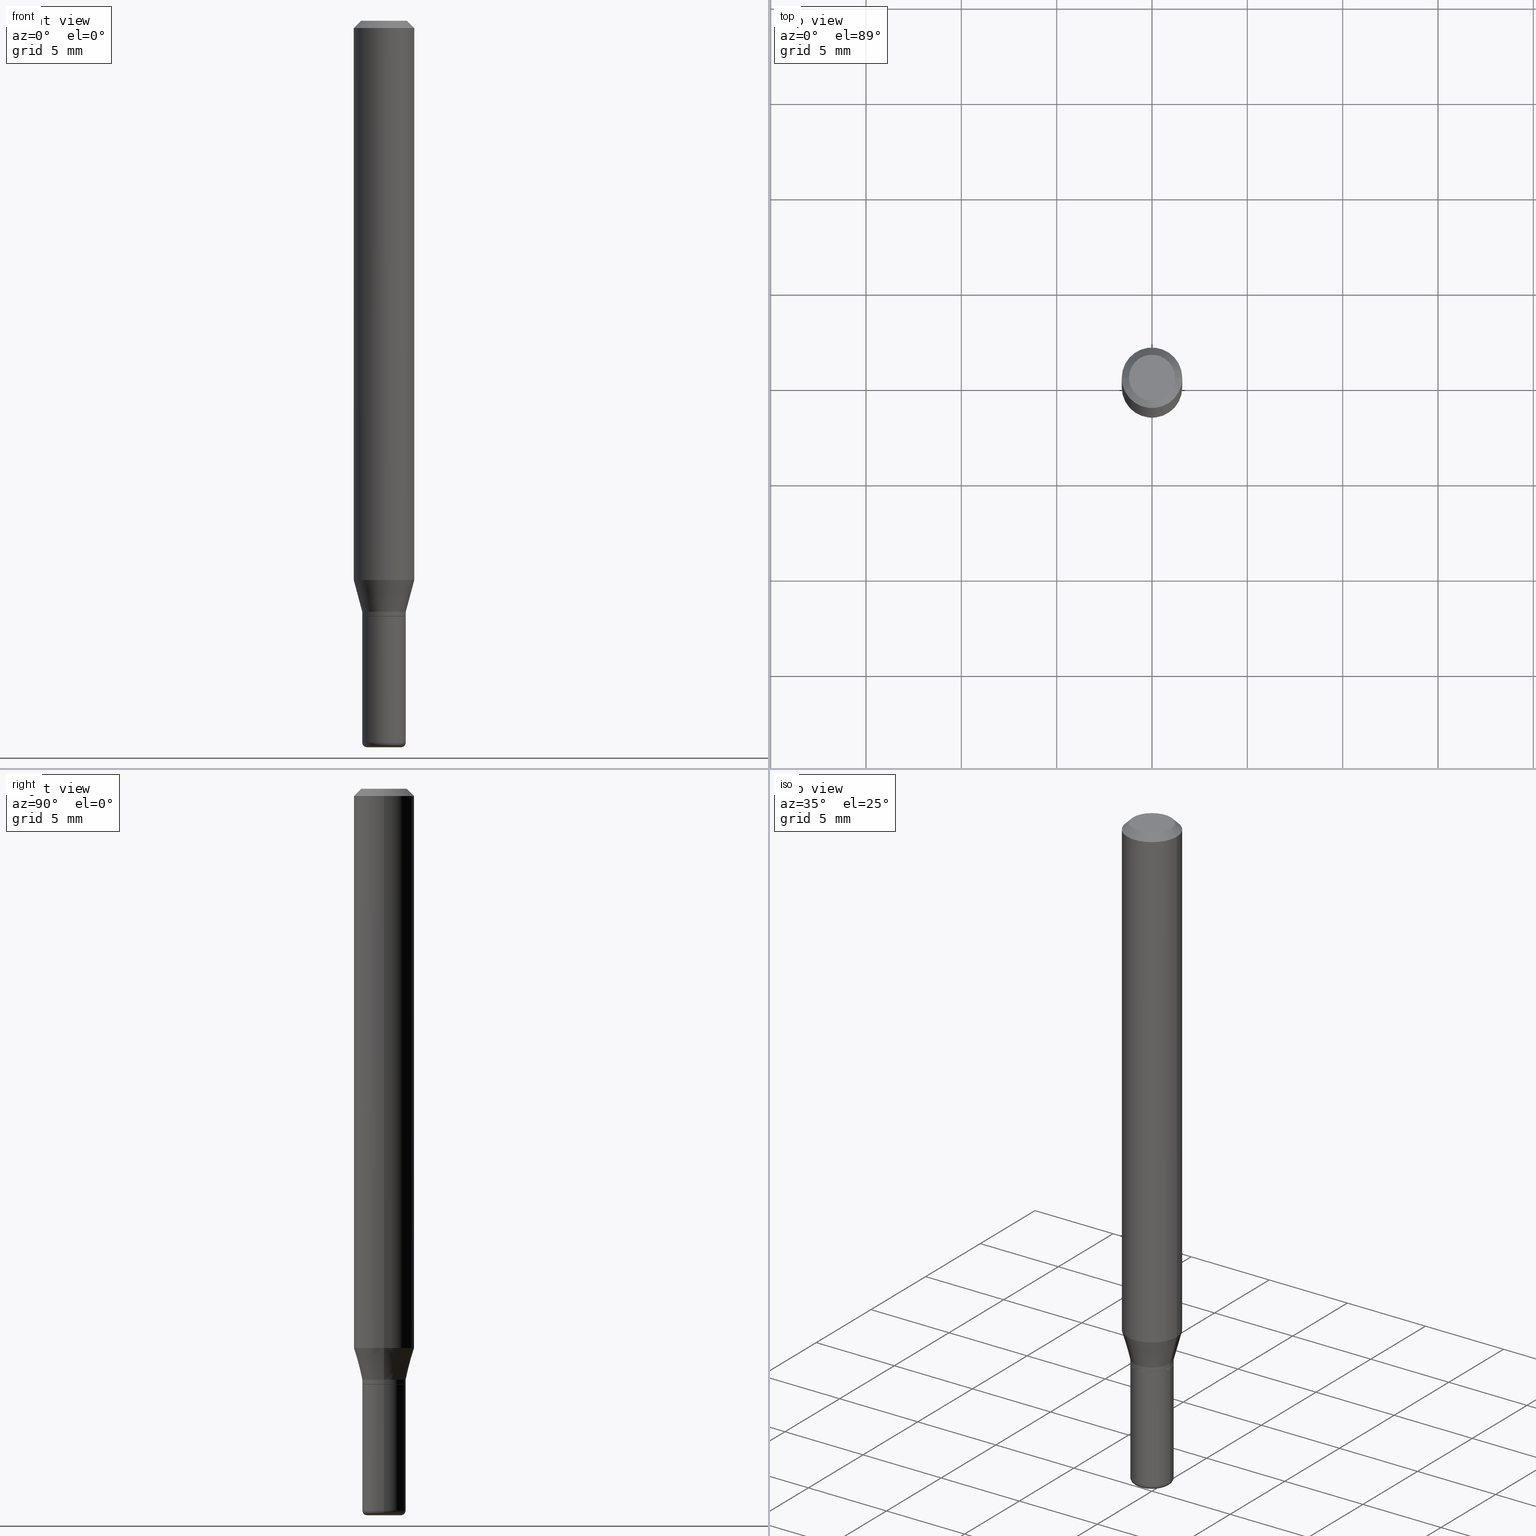
[diagram: canonical four-view strip — front | top / right | iso, engineering-drawing reading convention]
A machine part, canonical four-view strip (front | top / right | iso — engineering-drawing reading convention). The complete STEP part file that produces these views, byte-faithful:
ISO-10303-21;
HEADER;
FILE_DESCRIPTION (( 'STEP AP203' ),
    '1' );
FILE_NAME ('08578.STEP',
    '2024-02-29T19:51:22',
    ( '' ),
    ( '' ),
    'SwSTEP 2.0',
    'SolidWorks 2023',
    '' );
FILE_SCHEMA (( 'CONFIG_CONTROL_DESIGN' ));
ENDSEC;

DATA;
#1 = CIRCLE ( 'NONE', #450, 0.04499999999999997058 ) ;
#2 = CIRCLE ( 'NONE', #485, 0.04499999999999997058 ) ;
#3 = EDGE_CURVE ( 'NONE', #106, #59, #79, .T. ) ;
#4 = DIRECTION ( 'NONE',  ( 1.000000000000000000, -6.982962677686266711E-15, 4.852736867747365086E-29 ) ) ;
#5 = DIRECTION ( 'NONE',  ( 1.000000000000000000, -6.982962677686273021E-15, 0.000000000000000000 ) ) ;
#6 = DIRECTION ( 'NONE',  ( -2.445468806185136597E-29, 3.491481338843145583E-15, 1.000000000000000000 ) ) ;
#7 = ADVANCED_FACE ( 'NONE', ( #305 ), #483, .T. ) ;
#8 = CARTESIAN_POINT ( 'NONE',  ( -0.06250000000000000000, -3.587486272909353851E-15, -1.154689110867544555 ) ) ;
#9 = CARTESIAN_POINT ( 'NONE',  ( -0.04449999999999997014, -3.975681302189714292E-15, -1.230000000000000204 ) ) ;
#10 = DIRECTION ( 'NONE',  ( -2.438088387897960049E-29, 3.491481338843145188E-15, 1.000000000000000000 ) ) ;
#11 = DIRECTION ( 'NONE',  ( 1.000000000000000000, -6.982962677686265922E-15, 4.876176775795935793E-29 ) ) ;
#12 = APPROVAL ( #439, 'UNSPECIFIED' ) ;
#13 = DIRECTION ( 'NONE',  ( -2.445468806185136597E-29, 3.491481338843145583E-15, 1.000000000000000000 ) ) ;
#14 = ORIENTED_EDGE ( 'NONE', *, *, #82, .T. ) ;
#15 = AXIS2_PLACEMENT_3D ( 'NONE', #472, #72, #341 ) ;
#16 = CC_DESIGN_APPROVAL ( #174, ( #171 ) ) ;
#17 = CARTESIAN_POINT ( 'NONE',  ( 0.06250000000000000000, -4.468010650114807348E-15, -1.154689110867544555 ) ) ;
#18 = ORIENTED_EDGE ( 'NONE', *, *, #227, .F. ) ;
#19 = ADVANCED_FACE ( 'NONE', ( #88 ), #379, .T. ) ;
#20 = DIRECTION ( 'NONE',  ( -6.982962677686266711E-15, -1.000000000000000000, 3.491481338843145583E-15 ) ) ;
#21 = ORIENTED_EDGE ( 'NONE', *, *, #73, .F. ) ;
#22 = EDGE_LOOP ( 'NONE', ( #21, #482, #117, #375 ) ) ;
#23 = SHAPE_DEFINITION_REPRESENTATION ( #412, #203 ) ;
#24 = VERTEX_POINT ( 'NONE', #282 ) ;
#25 = ORIENTED_EDGE ( 'NONE', *, *, #370, .F. ) ;
#26 = AXIS2_PLACEMENT_3D ( 'NONE', #35, #233, #514 ) ;
#27 = AXIS2_PLACEMENT_3D ( 'NONE', #489, #133, #444 ) ;
#28 = DIRECTION ( 'NONE',  ( 1.000000000000000000, -6.982962677686261977E-15, 0.000000000000000000 ) ) ;
#29 = COORDINATED_UNIVERSAL_TIME_OFFSET ( 5, 0, .BEHIND. ) ;
#30 = VERTEX_POINT ( 'NONE', #50 ) ;
#31 = CC_DESIGN_DATE_AND_TIME_ASSIGNMENT ( #471, #348, ( #171 ) ) ;
#32 = DIRECTION ( 'NONE',  ( -1.000000000000000000, 7.105427357600962416E-15, 0.000000000000000000 ) ) ;
#33 = CARTESIAN_POINT ( 'NONE',  ( -0.03499999999999999639, -4.953617237360252819E-15, -1.490000000000000213 ) ) ;
#34 = VERTEX_POINT ( 'NONE', #9 ) ;
#35 = CARTESIAN_POINT ( 'NONE',  ( 3.668203209277632395E-31, -5.237222008264614861E-17, -0.01499999999999970281 ) ) ;
#36 = AXIS2_PLACEMENT_3D ( 'NONE', #457, #296, #176 ) ;
#37 = COORDINATED_UNIVERSAL_TIME_OFFSET ( 5, 0, .BEHIND. ) ;
#38 = LOCAL_TIME ( 14, 51, 22.00000000000000000, #64 ) ;
#39 = LINE ( 'NONE', #109, #178 ) ;
#40 = EDGE_CURVE ( 'NONE', #191, #290, #212, .T. ) ;
#41 = DIRECTION ( 'NONE',  ( 1.000000000000000000, -6.982962677686275388E-15, 0.000000000000000000 ) ) ;
#42 = EDGE_CURVE ( 'NONE', #499, #113, #245, .T. ) ;
#43 = ORIENTED_EDGE ( 'NONE', *, *, #383, .T. ) ;
#44 = CARTESIAN_POINT ( 'NONE',  ( 0.000000000000000000, 0.000000000000000000, 0.000000000000000000 ) ) ;
#45 = VECTOR ( 'NONE', #278, 39.37007874015748143 ) ;
#46 = DIRECTION ( 'NONE',  ( 1.000000000000000000, -6.982962677686267499E-15, 4.876176775795935793E-29 ) ) ;
#47 = DIRECTION ( 'NONE',  ( 1.000000000000000000, -6.982962677686265922E-15, 4.876176775795935793E-29 ) ) ;
#48 = EDGE_CURVE ( 'NONE', #230, #108, #313, .T. ) ;
#49 = LINE ( 'NONE', #255, #397 ) ;
#50 = CARTESIAN_POINT ( 'NONE',  ( -0.04750000000000000749, 3.578768372314221353E-16, 2.731847993664239060E-16 ) ) ;
#51 = LINE ( 'NONE', #353, #302 ) ;
#52 = ADVANCED_FACE ( 'NONE', ( #391 ), #347, .T. ) ;
#53 = DIRECTION ( 'NONE',  ( 1.000000000000000000, -6.982962677686266711E-15, 4.852736867747365086E-29 ) ) ;
#54 = AXIS2_PLACEMENT_3D ( 'NONE', #107, #263, #428 ) ;
#55 = DIMENSIONAL_EXPONENTS ( 1.000000000000000000, 0.000000000000000000, 0.000000000000000000, 0.000000000000000000, 0.000000000000000000, 0.000000000000000000, 0.000000000000000000 ) ;
#56 = CARTESIAN_POINT ( 'NONE',  ( 0.000000000000000000, 0.000000000000000000, 0.000000000000000000 ) ) ;
#57 = AXIS2_PLACEMENT_3D ( 'NONE', #172, #207, #324 ) ;
#58 = UNCERTAINTY_MEASURE_WITH_UNIT (LENGTH_MEASURE( 1.000000000000000082E-05 ), #253, 'distance_accuracy_value', 'NONE');
#59 = VERTEX_POINT ( 'NONE', #446 ) ;
#60 = FACE_OUTER_BOUND ( 'NONE', #419, .T. ) ;
#61 = CARTESIAN_POINT ( 'NONE',  ( 2.823756201468231071E-29, -4.031575482759415678E-15, -1.154689110867544555 ) ) ;
#62 = VECTOR ( 'NONE', #102, 39.37007874015748143 ) ;
#63 = AXIS2_PLACEMENT_3D ( 'NONE', #244, #487, #279 ) ;
#64 = COORDINATED_UNIVERSAL_TIME_OFFSET ( 5, 0, .BEHIND. ) ;
#65 = ORIENTED_EDGE ( 'NONE', *, *, #170, .F. ) ;
#66 = CARTESIAN_POINT ( 'NONE',  ( -0.04449999999999997014, -3.978330529363825493E-15, -1.230000000000000204 ) ) ;
#67 = EDGE_LOOP ( 'NONE', ( #185, #92, #435, #369 ) ) ;
#68 = CYLINDRICAL_SURFACE ( 'NONE', #187, 0.04499999999999997058 ) ;
#69 = CARTESIAN_POINT ( 'NONE',  ( -0.04499999999999997058, 3.197442310920448746E-16, -2.213520790614706158E-30 ) ) ;
#70 = DATE_AND_TIME ( #267, #38 ) ;
#71 = ORIENTED_EDGE ( 'NONE', *, *, #388, .T. ) ;
#72 = DIRECTION ( 'NONE',  ( -2.445468806185136597E-29, 3.491481338843145583E-15, 1.000000000000000000 ) ) ;
#73 = EDGE_CURVE ( 'NONE', #333, #113, #399, .T. ) ;
#74 = CARTESIAN_POINT ( 'NONE',  ( 0.000000000000000000, 0.000000000000000000, 0.000000000000000000 ) ) ;
#75 = AXIS2_PLACEMENT_3D ( 'NONE', #361, #208, #47 ) ;
#76 = DATE_TIME_ROLE ( 'creation_date' ) ;
#77 = CC_DESIGN_APPROVAL ( #12, ( #426 ) ) ;
#78 = DIRECTION ( 'NONE',  ( -2.445468806185136597E-29, 3.491481338843145583E-15, 1.000000000000000000 ) ) ;
#79 = LINE ( 'NONE', #69, #406 ) ;
#80 = ORIENTED_EDGE ( 'NONE', *, *, #518, .F. ) ;
#81 = DIRECTION ( 'NONE',  ( -1.000000000000000000, 6.982962677686266711E-15, 0.000000000000000000 ) ) ;
#82 = EDGE_CURVE ( 'NONE', #191, #427, #1, .T. ) ;
#83 = FACE_OUTER_BOUND ( 'NONE', #105, .T. ) ;
#84 = PRODUCT_RELATED_PRODUCT_CATEGORY ( 'detail', '', ( #497 ) ) ;
#85 = CONICAL_SURFACE ( 'NONE', #321, 0.04449999999999997014, 0.7853981633975507526 ) ;
#86 = DIRECTION ( 'NONE',  ( 1.000000000000000000, -6.982962677686269077E-15, 0.000000000000000000 ) ) ;
#87 = CARTESIAN_POINT ( 'NONE',  ( 3.006703897204625975E-29, -4.292776306107648458E-15, -1.229500000000000259 ) ) ;
#88 = FACE_OUTER_BOUND ( 'NONE', #201, .T. ) ;
#89 = ORIENTED_EDGE ( 'NONE', *, *, #344, .F. ) ;
#90 = PLANE ( 'NONE',  #63 ) ;
#91 = APPLICATION_CONTEXT ( 'configuration controlled 3d designs of mechanical parts and assemblies' ) ;
#92 = ORIENTED_EDGE ( 'NONE', *, *, #73, .T. ) ;
#93 = ORIENTED_EDGE ( 'NONE', *, *, #323, .T. ) ;
#94 = AXIS2_PLACEMENT_3D ( 'NONE', #272, #199, #438 ) ;
#95 = CIRCLE ( 'NONE', #213, 0.04499999999999994976 ) ;
#96 = EDGE_LOOP ( 'NONE', ( #276, #262, #148, #516 ) ) ;
#97 = EDGE_CURVE ( 'NONE', #468, #377, #322, .T. ) ;
#98 = ADVANCED_FACE ( 'NONE', ( #198 ), #135, .T. ) ;
#99 = COORDINATED_UNIVERSAL_TIME_OFFSET ( 5, 0, .BEHIND. ) ;
#100 = ORIENTED_EDGE ( 'NONE', *, *, #194, .T. ) ;
#101 = VECTOR ( 'NONE', #226, 39.37007874015748143 ) ;
#102 = DIRECTION ( 'NONE',  ( -2.445468806185136877E-29, 3.491481338843145188E-15, 1.000000000000000000 ) ) ;
#103 = ORIENTED_EDGE ( 'NONE', *, *, #210, .F. ) ;
#104 = CARTESIAN_POINT ( 'NONE',  ( 3.668203209277632395E-31, -5.237222008264614861E-17, -0.01499999999999970281 ) ) ;
#105 = EDGE_LOOP ( 'NONE', ( #335, #43 ) ) ;
#106 = VERTEX_POINT ( 'NONE', #204 ) ;
#107 = CARTESIAN_POINT ( 'NONE',  ( 3.643748521215853910E-29, -5.202307194876288105E-15, -1.490000000000000213 ) ) ;
#108 = VERTEX_POINT ( 'NONE', #392 ) ;
#109 = CARTESIAN_POINT ( 'NONE',  ( 0.04499999999999995670, -4.573840553884519999E-15, -1.220000000000000195 ) ) ;
#110 = AXIS2_PLACEMENT_3D ( 'NONE', #149, #352, #517 ) ;
#111 = AXIS2_PLACEMENT_3D ( 'NONE', #44, #167, #365 ) ;
#112 = EDGE_CURVE ( 'NONE', #230, #106, #354, .T. ) ;
#113 = VERTEX_POINT ( 'NONE', #504 ) ;
#114 = ORIENTED_EDGE ( 'NONE', *, *, #383, .F. ) ;
#115 = CARTESIAN_POINT ( 'NONE',  ( 2.983471943545866670E-29, -4.259607233388637524E-15, -1.220000000000000195 ) ) ;
#116 = FACE_OUTER_BOUND ( 'NONE', #510, .T. ) ;
#117 = ORIENTED_EDGE ( 'NONE', *, *, #448, .T. ) ;
#118 = CARTESIAN_POINT ( 'NONE',  ( 0.04499999999999996364, -3.142333204958817850E-16, 2.194279549108169215E-30 ) ) ;
#119 = APPROVAL_DATE_TIME ( #229, #12 ) ;
#120 = FACE_OUTER_BOUND ( 'NONE', #268, .T. ) ;
#121 = CIRCLE ( 'NONE', #275, 0.04750000000000000749 ) ;
#122 = ORIENTED_EDGE ( 'NONE', *, *, #496, .T. ) ;
#123 = FACE_OUTER_BOUND ( 'NONE', #22, .T. ) ;
#124 = EDGE_CURVE ( 'NONE', #24, #34, #473, .T. ) ;
#125 = DIRECTION ( 'NONE',  ( -2.445468806185136597E-29, 3.491481338843145583E-15, 1.000000000000000000 ) ) ;
#126 = CARTESIAN_POINT ( 'NONE',  ( -0.04499999999999996364, 3.197442310920448253E-16, -2.213520790614705808E-30 ) ) ;
#127 = FACE_OUTER_BOUND ( 'NONE', #256, .T. ) ;
#128 = DIRECTION ( 'NONE',  ( 1.000000000000000000, -6.982962677686275388E-15, 0.000000000000000000 ) ) ;
#129 = EDGE_CURVE ( 'NONE', #469, #384, #396, .T. ) ;
#130 = AXIS2_PLACEMENT_3D ( 'NONE', #240, #211, #4 ) ;
#131 = DIRECTION ( 'NONE',  ( -2.445468806185136877E-29, 3.491481338843145188E-15, 1.000000000000000000 ) ) ;
#132 = CARTESIAN_POINT ( 'NONE',  ( 3.643748521215853910E-29, -5.202307194876288105E-15, -1.490000000000000213 ) ) ;
#133 = DIRECTION ( 'NONE',  ( 2.445468806185136597E-29, -3.491481338843145583E-15, -1.000000000000000000 ) ) ;
#134 = DIRECTION ( 'NONE',  ( 1.000000000000000000, -6.982962677686266711E-15, 4.876176775795935793E-29 ) ) ;
#135 = CONICAL_SURFACE ( 'NONE', #238, 0.04499999999999995670, 0.2617993877991494633 ) ;
#136 = DIRECTION ( 'NONE',  ( 1.000000000000000000, -6.982962677686276177E-15, 4.883557194083116264E-29 ) ) ;
#137 = AXIS2_PLACEMENT_3D ( 'NONE', #115, #189, #431 ) ;
#138 = ORGANIZATION ( 'UNSPECIFIED', 'UNSPECIFIED', '' ) ;
#139 = LENGTH_MEASURE_WITH_UNIT ( LENGTH_MEASURE( 0.02539999999999999897 ), #177 );
#140 = PERSON_AND_ORGANIZATION ( #193, #138 ) ;
#141 = ORIENTED_EDGE ( 'NONE', *, *, #40, .T. ) ;
#142 = DIRECTION ( 'NONE',  ( -0.7071067811865479058, 2.468850131082261005E-15, -0.7071067811865471286 ) ) ;
#143 = ORIENTED_EDGE ( 'NONE', *, *, #3, .F. ) ;
#144 = AXIS2_PLACEMENT_3D ( 'NONE', #243, #403, #128 ) ;
#145 = AXIS2_PLACEMENT_3D ( 'NONE', #61, #78, #301 ) ;
#146 = APPROVAL_DATE_TIME ( #257, #174 ) ;
#147 = ORIENTED_EDGE ( 'NONE', *, *, #417, .F. ) ;
#148 = ORIENTED_EDGE ( 'NONE', *, *, #219, .F. ) ;
#149 = CARTESIAN_POINT ( 'NONE',  ( 3.007926631607718216E-29, -4.294522046777069173E-15, -1.230000000000000204 ) ) ;
#150 = CC_DESIGN_PERSON_AND_ORGANIZATION_ASSIGNMENT ( #151, #509, ( #426 ) ) ;
#151 = PERSON_AND_ORGANIZATION ( #193, #138 ) ;
#152 = DIRECTION ( 'NONE',  ( 1.000000000000000000, -6.982962677686267499E-15, 4.876176775795935793E-29 ) ) ;
#153 = VECTOR ( 'NONE', #131, 39.37007874015748143 ) ;
#154 = PERSON_AND_ORGANIZATION ( #193, #138 ) ;
#155 = EDGE_CURVE ( 'NONE', #106, #468, #95, .T. ) ;
#156 = DIRECTION ( 'NONE',  ( 1.000000000000000000, -6.982962677686267499E-15, 4.876176775795935793E-29 ) ) ;
#157 = DIRECTION ( 'NONE',  ( -2.445468806185136877E-29, 3.491481338843145188E-15, 1.000000000000000000 ) ) ;
#158 = SECURITY_CLASSIFICATION_LEVEL ( 'unclassified' ) ;
#159 = DIRECTION ( 'NONE',  ( 1.000000000000000000, -6.982962677686276966E-15, 0.000000000000000000 ) ) ;
#160 = ORIENTED_EDGE ( 'NONE', *, *, #124, .F. ) ;
#161 = ORIENTED_EDGE ( 'NONE', *, *, #326, .T. ) ;
#162 = DIRECTION ( 'NONE',  ( -2.445468806185136597E-29, 3.491481338843145583E-15, 1.000000000000000000 ) ) ;
#163 = CONICAL_SURFACE ( 'NONE', #458, 0.04449999999999997014, 0.7853981633975507526 ) ;
#164 = CARTESIAN_POINT ( 'NONE',  ( -0.06250000000000000000, 4.440892098500626162E-16, -3.074334431409316114E-30 ) ) ;
#165 = DIRECTION ( 'NONE',  ( 2.438088387897960049E-29, -3.491481338843145188E-15, -1.000000000000000000 ) ) ;
#166 = EDGE_CURVE ( 'NONE', #34, #24, #339, .T. ) ;
#167 = DIRECTION ( 'NONE',  ( -2.445468806185136597E-29, 3.491481338843145583E-15, 1.000000000000000000 ) ) ;
#168 = VERTEX_POINT ( 'NONE', #202 ) ;
#169 = CIRCLE ( 'NONE', #217, 0.009999999999999948166 ) ;
#170 = EDGE_CURVE ( 'NONE', #384, #469, #314, .T. ) ;
#171 = SECURITY_CLASSIFICATION ( '', '', #158 ) ;
#172 = CARTESIAN_POINT ( 'NONE',  ( 3.007926631607718216E-29, -4.294522046777069173E-15, -1.230000000000000204 ) ) ;
#173 = APPLICATION_CONTEXT ( 'configuration controlled 3d designs of mechanical parts and assemblies' ) ;
#174 = APPROVAL ( #273, 'UNSPECIFIED' ) ;
#175 = ORIENTED_EDGE ( 'NONE', *, *, #344, .T. ) ;
#176 = DIRECTION ( 'NONE',  ( 1.000000000000000000, -6.982962677686266711E-15, 4.876176775795935793E-29 ) ) ;
#177 =( LENGTH_UNIT ( ) NAMED_UNIT ( * ) SI_UNIT ( $, .METRE. ) );
#178 = VECTOR ( 'NONE', #228, 39.37007874015748854 ) ;
#179 = CC_DESIGN_APPROVAL ( #215, ( #328 ) ) ;
#180 = FACE_OUTER_BOUND ( 'NONE', #484, .T. ) ;
#181 = EDGE_LOOP ( 'NONE', ( #18, #503 ) ) ;
#182 = CYLINDRICAL_SURFACE ( 'NONE', #36, 0.06250000000000000000 ) ;
#183 = ORIENTED_EDGE ( 'NONE', *, *, #294, .F. ) ;
#184 = ORIENTED_EDGE ( 'NONE', *, *, #326, .F. ) ;
#185 = ORIENTED_EDGE ( 'NONE', *, *, #323, .F. ) ;
#186 = CLOSED_SHELL ( 'NONE', ( #7, #260, #398, #310, #505, #360 ) ) ;
#187 = AXIS2_PLACEMENT_3D ( 'NONE', #346, #512, #156 ) ;
#188 = CC_DESIGN_PERSON_AND_ORGANIZATION_ASSIGNMENT ( #222, #420, ( #171 ) ) ;
#189 = DIRECTION ( 'NONE',  ( -2.445468806185136597E-29, 3.491481338843145583E-15, 1.000000000000000000 ) ) ;
#190 = PERSON_AND_ORGANIZATION_ROLE ( 'creator' ) ;
#191 = VERTEX_POINT ( 'NONE', #351 ) ;
#192 = CARTESIAN_POINT ( 'NONE',  ( 0.000000000000000000, 0.000000000000000000, 0.000000000000000000 ) ) ;
#193 = PERSON ( 'UNSPECIFIED', 'UNSPECIFIED', 'UNSPECIFIED', ('UNSPECIFIED'), ('UNSPECIFIED'), ('UNSPECIFIED') ) ;
#194 = EDGE_CURVE ( 'NONE', #290, #168, #372, .T. ) ;
#195 = CARTESIAN_POINT ( 'NONE',  ( 3.643748521215853910E-29, -5.202307194876288105E-15, -1.490000000000000213 ) ) ;
#196 = ORIENTED_EDGE ( 'NONE', *, *, #241, .F. ) ;
#197 = LOCAL_TIME ( 14, 51, 22.00000000000000000, #37 ) ;
#198 = FACE_OUTER_BOUND ( 'NONE', #387, .T. ) ;
#199 = DIRECTION ( 'NONE',  ( -2.445468806185136597E-29, 3.491481338843145583E-15, 1.000000000000000000 ) ) ;
#200 = PERSON_AND_ORGANIZATION ( #193, #138 ) ;
#201 = EDGE_LOOP ( 'NONE', ( #100, #175, #338, #103 ) ) ;
#202 = CARTESIAN_POINT ( 'NONE',  ( -0.04499999999999995670, -3.763674637602973398E-15, -1.220000000000000195 ) ) ;
#203 = ADVANCED_BREP_SHAPE_REPRESENTATION ( '08578', ( #434, #445, #277 ), #373 ) ;
#204 = CARTESIAN_POINT ( 'NONE',  ( -0.04499999999999994976, -4.428670389734633666E-15, -1.490000000000000213 ) ) ;
#205 = PLANE ( 'NONE',  #330 ) ;
#206 = CIRCLE ( 'NONE', #407, 0.03500000000000000333 ) ;
#207 = DIRECTION ( 'NONE',  ( -2.445468806185136597E-29, 3.491481338843145583E-15, 1.000000000000000000 ) ) ;
#208 = DIRECTION ( 'NONE',  ( -2.438088387897960049E-29, 3.491481338843145188E-15, 1.000000000000000000 ) ) ;
#209 = ORIENTED_EDGE ( 'NONE', *, *, #219, .T. ) ;
#210 = EDGE_CURVE ( 'NONE', #290, #469, #39, .T. ) ;
#211 = DIRECTION ( 'NONE',  ( -2.445468806185136597E-29, 3.491481338843145583E-15, 1.000000000000000000 ) ) ;
#212 = LINE ( 'NONE', #118, #252 ) ;
#213 = AXIS2_PLACEMENT_3D ( 'NONE', #195, #162, #479 ) ;
#214 = FACE_OUTER_BOUND ( 'NONE', #181, .T. ) ;
#215 = APPROVAL ( #411, 'UNSPECIFIED' ) ;
#216 = MECHANICAL_CONTEXT ( 'NONE', #91, 'mechanical' ) ;
#217 = AXIS2_PLACEMENT_3D ( 'NONE', #409, #20, #286 ) ;
#218 = EDGE_LOOP ( 'NONE', ( #160, #462 ) ) ;
#219 = EDGE_CURVE ( 'NONE', #468, #106, #297, .T. ) ;
#220 = CARTESIAN_POINT ( 'NONE',  ( -0.06250000000000000000, -1.597884641570968368E-15, -0.01499999999999970281 ) ) ;
#221 = ORIENTED_EDGE ( 'NONE', *, *, #48, .T. ) ;
#222 = PERSON_AND_ORGANIZATION ( #193, #138 ) ;
#223 = CONICAL_SURFACE ( 'NONE', #27, 0.06250000000000000000, 0.7853981633974488341 ) ;
#224 = LINE ( 'NONE', #66, #101 ) ;
#225 = COORDINATED_UNIVERSAL_TIME_OFFSET ( 5, 0, .BEHIND. ) ;
#226 = DIRECTION ( 'NONE',  ( -0.7071067811866199593, 7.493145998870616062E-15, 0.7071067811864750752 ) ) ;
#227 = EDGE_CURVE ( 'NONE', #108, #230, #206, .T. ) ;
#228 = DIRECTION ( 'NONE',  ( 0.2588190451025207395, 1.565188264969626109E-15, 0.9659258262890682012 ) ) ;
#229 = DATE_AND_TIME ( #506, #408 ) ;
#230 = VERTEX_POINT ( 'NONE', #390 ) ;
#231 = CARTESIAN_POINT ( 'NONE',  ( 2.983471943545866670E-29, -4.259607233388637524E-15, -1.220000000000000195 ) ) ;
#232 = VECTOR ( 'NONE', #303, 39.37007874015748143 ) ;
#233 = DIRECTION ( 'NONE',  ( -2.445468806185136597E-29, 3.491481338843145583E-15, 1.000000000000000000 ) ) ;
#234 = APPROVAL_ROLE ( '' ) ;
#235 = DIRECTION ( 'NONE',  ( 7.105427357601001859E-15, 1.000000000000000000, -3.491481338843145583E-15 ) ) ;
#236 = CARTESIAN_POINT ( 'NONE',  ( 3.582686580359766038E-29, -5.359686688179453325E-15, -1.500000000000000222 ) ) ;
#237 = DIRECTION ( 'NONE',  ( -0.2588190451025207395, 5.211531920934546309E-15, 0.9659258262890682012 ) ) ;
#238 = AXIS2_PLACEMENT_3D ( 'NONE', #231, #304, #41 ) ;
#239 = DIRECTION ( 'NONE',  ( -2.445468806185136597E-29, 3.491481338843145583E-15, 1.000000000000000000 ) ) ;
#240 = CARTESIAN_POINT ( 'NONE',  ( -6.680649051745406845E-45, 9.538196290434862081E-31, 2.731847993664263218E-16 ) ) ;
#241 = EDGE_CURVE ( 'NONE', #34, #427, #224, .T. ) ;
#242 = DIRECTION ( 'NONE',  ( -2.445468806185136877E-29, 3.491481338843145188E-15, 1.000000000000000000 ) ) ;
#243 = CARTESIAN_POINT ( 'NONE',  ( 2.983471943545866670E-29, -4.259607233388637524E-15, -1.220000000000000195 ) ) ;
#244 = CARTESIAN_POINT ( 'NONE',  ( 3.142333204959120083E-16, 0.04499999999999570316, -1.230000000000000204 ) ) ;
#245 = CIRCLE ( 'NONE', #26, 0.06250000000000000000 ) ;
#246 = AXIS2_PLACEMENT_3D ( 'NONE', #236, #10, #11 ) ;
#247 = CIRCLE ( 'NONE', #130, 0.04750000000000000749 ) ;
#248 = CARTESIAN_POINT ( 'NONE',  ( 3.007926631607718216E-29, -4.294522046777069173E-15, -1.230000000000000204 ) ) ;
#249 = CC_DESIGN_PERSON_AND_ORGANIZATION_ASSIGNMENT ( #389, #299, ( #426 ) ) ;
#250 = DIRECTION ( 'NONE',  ( 0.000000000000000000, 0.000000000000000000, 1.000000000000000000 ) ) ;
#251 = APPLICATION_PROTOCOL_DEFINITION ( 'international standard', 'config_control_design', 1994, #173 ) ;
#252 = VECTOR ( 'NONE', #306, 39.37007874015748143 ) ;
#253 =( CONVERSION_BASED_UNIT ( 'INCH', #139 ) LENGTH_UNIT ( ) NAMED_UNIT ( #55 ) );
#254 = AXIS2_PLACEMENT_3D ( 'NONE', #104, #415, #331 ) ;
#255 = CARTESIAN_POINT ( 'NONE',  ( -0.06250000000000000000, 3.840629472727455270E-16, -0.01499999999999970281 ) ) ;
#256 = EDGE_LOOP ( 'NONE', ( #14, #502, #410, #443 ) ) ;
#257 = DATE_AND_TIME ( #337, #289 ) ;
#258 = ORIENTED_EDGE ( 'NONE', *, *, #42, .F. ) ;
#259 = LINE ( 'NONE', #265, #232 ) ;
#260 = ADVANCED_FACE ( 'NONE', ( #422 ), #309, .T. ) ;
#261 = CLOSED_SHELL ( 'NONE', ( #423, #280, #404, #459, #19, #98, #511, #355, #432, #317, #455, #52 ) ) ;
#262 = ORIENTED_EDGE ( 'NONE', *, *, #112, .T. ) ;
#263 = DIRECTION ( 'NONE',  ( -2.445468806185136597E-29, 3.491481338843145583E-15, 1.000000000000000000 ) ) ;
#264 = CC_DESIGN_PERSON_AND_ORGANIZATION_ASSIGNMENT ( #200, #190, ( #328 ) ) ;
#265 = CARTESIAN_POINT ( 'NONE',  ( 0.04449999999999997014, -4.605263885934107852E-15, -1.230000000000000204 ) ) ;
#266 = EDGE_CURVE ( 'NONE', #24, #191, #259, .T. ) ;
#267 = CALENDAR_DATE ( 2024, 29, 2 ) ;
#268 = EDGE_LOOP ( 'NONE', ( #332, #430, #378, #463 ) ) ;
#269 = ORIENTED_EDGE ( 'NONE', *, *, #129, .T. ) ;
#270 = CARTESIAN_POINT ( 'NONE',  ( 3.668203209277704895E-29, -5.237222008264718177E-15, -1.500000000000000222 ) ) ;
#271 = ORIENTED_EDGE ( 'NONE', *, *, #97, .T. ) ;
#272 = CARTESIAN_POINT ( 'NONE',  ( 3.668203209277704895E-29, -5.237222008264718177E-15, -1.500000000000000222 ) ) ;
#273 = APPROVAL_STATUS ( 'not_yet_approved' ) ;
#274 = CARTESIAN_POINT ( 'NONE',  ( 3.007926631607718216E-29, -4.294522046777069173E-15, -1.230000000000000204 ) ) ;
#275 = AXIS2_PLACEMENT_3D ( 'NONE', #491, #6, #53 ) ;
#276 = ORIENTED_EDGE ( 'NONE', *, *, #227, .T. ) ;
#277 = AXIS2_PLACEMENT_3D ( 'NONE', #56, #250, #498 ) ;
#278 = DIRECTION ( 'NONE',  ( -2.445468806185136877E-29, 3.491481338843145188E-15, 1.000000000000000000 ) ) ;
#279 = DIRECTION ( 'NONE',  ( -1.000000000000000000, 6.982962677686265922E-15, -4.876176775795935793E-29 ) ) ;
#280 = ADVANCED_FACE ( 'NONE', ( #120 ), #163, .T. ) ;
#281 = CARTESIAN_POINT ( 'NONE',  ( 0.04750000000000000749, -4.035134999187568762E-16, 2.731847993664288856E-16 ) ) ;
#282 = CARTESIAN_POINT ( 'NONE',  ( 0.04449999999999997014, -4.605263885934107852E-15, -1.230000000000000204 ) ) ;
#283 = CIRCLE ( 'NONE', #57, 0.04499999999999999833 ) ;
#284 = LINE ( 'NONE', #126, #45 ) ;
#285 = CARTESIAN_POINT ( 'NONE',  ( 0.04499999999999999833, -4.608755367272951648E-15, -1.230000000000000204 ) ) ;
#286 = DIRECTION ( 'NONE',  ( 1.000000000000000000, -6.982962677686272233E-15, 0.000000000000000000 ) ) ;
#287 = AXIS2_PLACEMENT_3D ( 'NONE', #74, #239, #46 ) ;
#288 = VECTOR ( 'NONE', #242, 39.37007874015748143 ) ;
#289 = LOCAL_TIME ( 14, 51, 22.00000000000000000, #29 ) ;
#290 = VERTEX_POINT ( 'NONE', #382 ) ;
#291 =( NAMED_UNIT ( * ) PLANE_ANGLE_UNIT ( ) SI_UNIT ( $, .RADIAN. ) );
#292 = PERSON_AND_ORGANIZATION ( #193, #138 ) ;
#293 = ORIENTED_EDGE ( 'NONE', *, *, #155, .F. ) ;
#294 = EDGE_CURVE ( 'NONE', #168, #290, #362, .T. ) ;
#295 = CC_DESIGN_DATE_AND_TIME_ASSIGNMENT ( #70, #76, ( #328 ) ) ;
#296 = DIRECTION ( 'NONE',  ( -2.445468806185136597E-29, 3.491481338843145583E-15, 1.000000000000000000 ) ) ;
#297 = CIRCLE ( 'NONE', #54, 0.04499999999999994976 ) ;
#298 = ORIENTED_EDGE ( 'NONE', *, *, #370, .T. ) ;
#299 = PERSON_AND_ORGANIZATION_ROLE ( 'design_supplier' ) ;
#300 = ORIENTED_EDGE ( 'NONE', *, *, #170, .T. ) ;
#301 = DIRECTION ( 'NONE',  ( 1.000000000000000000, -6.982962677686270655E-15, 0.000000000000000000 ) ) ;
#302 = VECTOR ( 'NONE', #237, 39.37007874015748854 ) ;
#303 = DIRECTION ( 'NONE',  ( 0.7071067811866199593, -2.468850131083015945E-15, 0.7071067811864750752 ) ) ;
#304 = DIRECTION ( 'NONE',  ( -2.445468806185136597E-29, 3.491481338843145583E-15, 1.000000000000000000 ) ) ;
#305 = FACE_OUTER_BOUND ( 'NONE', #96, .T. ) ;
#306 = DIRECTION ( 'NONE',  ( -2.445468806185136877E-29, 3.491481338843145188E-15, 1.000000000000000000 ) ) ;
#307 = DATE_AND_TIME ( #433, #315 ) ;
#308 = ORIENTED_EDGE ( 'NONE', *, *, #97, .F. ) ;
#309 = CYLINDRICAL_SURFACE ( 'NONE', #441, 0.04499999999999997058 ) ;
#310 = ADVANCED_FACE ( 'NONE', ( #116 ), #68, .T. ) ;
#311 = EDGE_LOOP ( 'NONE', ( #416, #93 ) ) ;
#312 = CARTESIAN_POINT ( 'NONE',  ( -0.04499999999999997058, -3.973032075015603880E-15, -1.229500000000000259 ) ) ;
#313 = CIRCLE ( 'NONE', #94, 0.03500000000000000333 ) ;
#314 = CIRCLE ( 'NONE', #145, 0.06250000000000000000 ) ;
#315 = LOCAL_TIME ( 14, 51, 22.00000000000000000, #99 ) ;
#316 = CARTESIAN_POINT ( 'NONE',  ( 3.007926631607718216E-29, -4.294522046777069173E-15, -1.230000000000000204 ) ) ;
#317 = ADVANCED_FACE ( 'NONE', ( #436 ), #320, .F. ) ;
#318 = FACE_OUTER_BOUND ( 'NONE', #67, .T. ) ;
#319 = CARTESIAN_POINT ( 'NONE',  ( 0.06250000000000000000, -4.811533449433669144E-16, -0.01499999999999970281 ) ) ;
#320 = PLANE ( 'NONE',  #75 ) ;
#321 = AXIS2_PLACEMENT_3D ( 'NONE', #248, #334, #493 ) ;
#322 = LINE ( 'NONE', #492, #62 ) ;
#323 = EDGE_CURVE ( 'NONE', #333, #30, #121, .T. ) ;
#324 = DIRECTION ( 'NONE',  ( 1.000000000000000000, -6.982962677686269077E-15, 0.000000000000000000 ) ) ;
#325 =( NAMED_UNIT ( * ) SI_UNIT ( $, .STERADIAN. ) SOLID_ANGLE_UNIT ( ) );
#326 = EDGE_CURVE ( 'NONE', #427, #191, #2, .T. ) ;
#327 = FACE_OUTER_BOUND ( 'NONE', #437, .T. ) ;
#328 = PRODUCT_DEFINITION ( 'UNKNOWN', '', #426, #500 ) ;
#329 = AXIS2_PLACEMENT_3D ( 'NONE', #33, #235, #32 ) ;
#330 = AXIS2_PLACEMENT_3D ( 'NONE', #357, #165, #449 ) ;
#331 = DIRECTION ( 'NONE',  ( 1.000000000000000000, -6.982962677686266711E-15, 0.000000000000000000 ) ) ;
#332 = ORIENTED_EDGE ( 'NONE', *, *, #124, .T. ) ;
#333 = VERTEX_POINT ( 'NONE', #281 ) ;
#334 = DIRECTION ( 'NONE',  ( -2.445468806185136597E-29, 3.491481338843145583E-15, 1.000000000000000000 ) ) ;
#335 = ORIENTED_EDGE ( 'NONE', *, *, #364, .T. ) ;
#336 = ORIENTED_EDGE ( 'NONE', *, *, #294, .T. ) ;
#337 = CALENDAR_DATE ( 2024, 29, 2 ) ;
#338 = ORIENTED_EDGE ( 'NONE', *, *, #129, .F. ) ;
#339 = CIRCLE ( 'NONE', #345, 0.04449999999999997014 ) ;
#340 = ORIENTED_EDGE ( 'NONE', *, *, #210, .T. ) ;
#341 = DIRECTION ( 'NONE',  ( 1.000000000000000000, -6.982962677686270655E-15, 0.000000000000000000 ) ) ;
#342 = ORIENTED_EDGE ( 'NONE', *, *, #112, .F. ) ;
#343 = DIRECTION ( 'NONE',  ( -2.445468806185136597E-29, 3.491481338843145583E-15, 1.000000000000000000 ) ) ;
#344 = EDGE_CURVE ( 'NONE', #168, #384, #51, .T. ) ;
#345 = AXIS2_PLACEMENT_3D ( 'NONE', #386, #507, #481 ) ;
#346 = CARTESIAN_POINT ( 'NONE',  ( 0.000000000000000000, 0.000000000000000000, 0.000000000000000000 ) ) ;
#347 = CYLINDRICAL_SURFACE ( 'NONE', #287, 0.04499999999999996364 ) ;
#348 = DATE_TIME_ROLE ( 'classification_date' ) ;
#349 = EDGE_CURVE ( 'NONE', #30, #333, #247, .T. ) ;
#350 = EDGE_LOOP ( 'NONE', ( #269, #71, #80, #25 ) ) ;
#351 = CARTESIAN_POINT ( 'NONE',  ( 0.04499999999999997058, -4.607009626603530145E-15, -1.229500000000000259 ) ) ;
#352 = DIRECTION ( 'NONE',  ( -2.445468806185136597E-29, 3.491481338843145583E-15, 1.000000000000000000 ) ) ;
#353 = CARTESIAN_POINT ( 'NONE',  ( -0.04499999999999995670, -3.939863002296592945E-15, -1.220000000000000195 ) ) ;
#354 = CIRCLE ( 'NONE', #329, 0.009999999999999948166 ) ;
#355 = ADVANCED_FACE ( 'NONE', ( #123 ), #223, .T. ) ;
#356 = DIRECTION ( 'NONE',  ( 0.7071067811865479058, -7.319954787623257623E-15, -0.7071067811865471286 ) ) ;
#357 = CARTESIAN_POINT ( 'NONE',  ( 3.316907271900976589E-16, 0.04750000000000000749, -2.925296391183627249E-17 ) ) ;
#358 = CARTESIAN_POINT ( 'NONE',  ( 3.006703897204625975E-29, -4.292776306107648458E-15, -1.229500000000000259 ) ) ;
#359 = DIRECTION ( 'NONE',  ( 1.000000000000000000, -6.982962677686273021E-15, 0.000000000000000000 ) ) ;
#360 = ADVANCED_FACE ( 'NONE', ( #214 ), #447, .F. ) ;
#361 = CARTESIAN_POINT ( 'NONE',  ( 3.007926631607718216E-29, -4.294522046777069173E-15, -1.230000000000000204 ) ) ;
#362 = CIRCLE ( 'NONE', #137, 0.04499999999999995670 ) ;
#363 = APPROVAL_PERSON_ORGANIZATION ( #478, #174, #234 ) ;
#364 = EDGE_CURVE ( 'NONE', #377, #59, #283, .T. ) ;
#365 = DIRECTION ( 'NONE',  ( 1.000000000000000000, -6.982962677686267499E-15, 4.876176775795935793E-29 ) ) ;
#366 = CC_DESIGN_PERSON_AND_ORGANIZATION_ASSIGNMENT ( #140, #368, ( #497 ) ) ;
#367 = FACE_OUTER_BOUND ( 'NONE', #350, .T. ) ;
#368 = PERSON_AND_ORGANIZATION_ROLE ( 'design_owner' ) ;
#369 = ORIENTED_EDGE ( 'NONE', *, *, #448, .F. ) ;
#370 = EDGE_CURVE ( 'NONE', #469, #113, #400, .T. ) ;
#371 = AXIS2_PLACEMENT_3D ( 'NONE', #132, #401, #454 ) ;
#372 = CIRCLE ( 'NONE', #490, 0.04499999999999995670 ) ;
#373 =( GEOMETRIC_REPRESENTATION_CONTEXT ( 3 ) GLOBAL_UNCERTAINTY_ASSIGNED_CONTEXT ( ( #58 ) ) GLOBAL_UNIT_ASSIGNED_CONTEXT ( ( #253, #291, #325 ) ) REPRESENTATION_CONTEXT ( 'NONE', 'WORKASPACE' ) );
#374 = APPROVAL_ROLE ( '' ) ;
#375 = ORIENTED_EDGE ( 'NONE', *, *, #42, .T. ) ;
#376 = EDGE_LOOP ( 'NONE', ( #147, #161, #141, #183 ) ) ;
#377 = VERTEX_POINT ( 'NONE', #285 ) ;
#378 = ORIENTED_EDGE ( 'NONE', *, *, #82, .F. ) ;
#379 = CONICAL_SURFACE ( 'NONE', #144, 0.04499999999999995670, 0.2617993877991494633 ) ;
#380 = AXIS2_PLACEMENT_3D ( 'NONE', #316, #456, #86 ) ;
#381 = ORIENTED_EDGE ( 'NONE', *, *, #364, .F. ) ;
#382 = CARTESIAN_POINT ( 'NONE',  ( 0.04499999999999995670, -4.573840553884519999E-15, -1.220000000000000195 ) ) ;
#383 = EDGE_CURVE ( 'NONE', #59, #377, #474, .T. ) ;
#384 = VERTEX_POINT ( 'NONE', #8 ) ;
#385 = DIRECTION ( 'NONE',  ( 1.000000000000000000, -6.982962677686275388E-15, 0.000000000000000000 ) ) ;
#386 = CARTESIAN_POINT ( 'NONE',  ( 3.007926631607718216E-29, -4.294522046777069173E-15, -1.230000000000000204 ) ) ;
#387 = EDGE_LOOP ( 'NONE', ( #89, #336, #340, #65 ) ) ;
#388 = EDGE_CURVE ( 'NONE', #384, #499, #453, .T. ) ;
#389 = PERSON_AND_ORGANIZATION ( #193, #138 ) ;
#390 = CARTESIAN_POINT ( 'NONE',  ( -0.03500000000000000333, -4.935547507266464392E-15, -1.500000000000000222 ) ) ;
#391 = FACE_OUTER_BOUND ( 'NONE', #376, .T. ) ;
#392 = CARTESIAN_POINT ( 'NONE',  ( 0.03500000000000000333, -5.481625701983738143E-15, -1.500000000000000222 ) ) ;
#393 = ORIENTED_EDGE ( 'NONE', *, *, #388, .F. ) ;
#394 = FACE_OUTER_BOUND ( 'NONE', #311, .T. ) ;
#395 = CYLINDRICAL_SURFACE ( 'NONE', #111, 0.04499999999999996364 ) ;
#396 = CIRCLE ( 'NONE', #15, 0.06250000000000000000 ) ;
#397 = VECTOR ( 'NONE', #142, 39.37007874015748143 ) ;
#398 = ADVANCED_FACE ( 'NONE', ( #83 ), #90, .F. ) ;
#399 = LINE ( 'NONE', #319, #464 ) ;
#400 = LINE ( 'NONE', #402, #153 ) ;
#401 = DIRECTION ( 'NONE',  ( -2.445468806185136597E-29, 3.491481338843145583E-15, 1.000000000000000000 ) ) ;
#402 = CARTESIAN_POINT ( 'NONE',  ( 0.06250000000000000000, -4.364351673553916694E-16, 3.047610484872459871E-30 ) ) ;
#403 = DIRECTION ( 'NONE',  ( -2.445468806185136597E-29, 3.491481338843145583E-15, 1.000000000000000000 ) ) ;
#404 = ADVANCED_FACE ( 'NONE', ( #318 ), #424, .T. ) ;
#405 = CARTESIAN_POINT ( 'NONE',  ( 3.668203209277632395E-31, -5.237222008264614861E-17, -0.01499999999999970281 ) ) ;
#406 = VECTOR ( 'NONE', #157, 39.37007874015748143 ) ;
#407 = AXIS2_PLACEMENT_3D ( 'NONE', #270, #442, #159 ) ;
#408 = LOCAL_TIME ( 14, 51, 22.00000000000000000, #225 ) ;
#409 = CARTESIAN_POINT ( 'NONE',  ( 0.03499999999999999639, -5.446710888595307282E-15, -1.490000000000000213 ) ) ;
#410 = ORIENTED_EDGE ( 'NONE', *, *, #194, .F. ) ;
#411 = APPROVAL_STATUS ( 'not_yet_approved' ) ;
#412 = PRODUCT_DEFINITION_SHAPE ( 'NONE', 'NONE',  #328 ) ;
#413 = AXIS2_PLACEMENT_3D ( 'NONE', #501, #13, #136 ) ;
#414 = APPROVAL_PERSON_ORGANIZATION ( #154, #12, #429 ) ;
#415 = DIRECTION ( 'NONE',  ( -2.445468806185136597E-29, 3.491481338843145583E-15, 1.000000000000000000 ) ) ;
#416 = ORIENTED_EDGE ( 'NONE', *, *, #349, .T. ) ;
#417 = EDGE_CURVE ( 'NONE', #427, #168, #284, .T. ) ;
#418 = DIRECTION ( 'NONE',  ( -2.445468806185136597E-29, 3.491481338843145583E-15, 1.000000000000000000 ) ) ;
#419 = EDGE_LOOP ( 'NONE', ( #342, #221, #122, #293 ) ) ;
#420 = PERSON_AND_ORGANIZATION_ROLE ( 'classification_officer' ) ;
#421 = ORIENTED_EDGE ( 'NONE', *, *, #266, .T. ) ;
#422 = FACE_OUTER_BOUND ( 'NONE', #513, .T. ) ;
#423 = ADVANCED_FACE ( 'NONE', ( #127 ), #395, .T. ) ;
#424 = CONICAL_SURFACE ( 'NONE', #494, 0.06250000000000000000, 0.7853981633974488341 ) ;
#425 = APPROVAL_DATE_TIME ( #307, #215 ) ;
#426 = PRODUCT_DEFINITION_FORMATION_WITH_SPECIFIED_SOURCE ( 'ANY', '', #497, .NOT_KNOWN. ) ;
#427 = VERTEX_POINT ( 'NONE', #312 ) ;
#428 = DIRECTION ( 'NONE',  ( 1.000000000000000000, -6.982962677686276177E-15, 0.000000000000000000 ) ) ;
#429 = APPROVAL_ROLE ( '' ) ;
#430 = ORIENTED_EDGE ( 'NONE', *, *, #241, .T. ) ;
#431 = DIRECTION ( 'NONE',  ( 1.000000000000000000, -6.982962677686275388E-15, 0.000000000000000000 ) ) ;
#432 = ADVANCED_FACE ( 'NONE', ( #394 ), #205, .F. ) ;
#433 = CALENDAR_DATE ( 2024, 29, 2 ) ;
#434 = MANIFOLD_SOLID_BREP ( 'Body-Move/Copy2[1]', #186 ) ;
#435 = ORIENTED_EDGE ( 'NONE', *, *, #518, .T. ) ;
#436 = FACE_OUTER_BOUND ( 'NONE', #218, .T. ) ;
#437 = EDGE_LOOP ( 'NONE', ( #196, #476, #421, #184 ) ) ;
#438 = DIRECTION ( 'NONE',  ( 1.000000000000000000, -6.982962677686276966E-15, 0.000000000000000000 ) ) ;
#439 = APPROVAL_STATUS ( 'not_yet_approved' ) ;
#440 = ORIENTED_EDGE ( 'NONE', *, *, #155, .T. ) ;
#441 = AXIS2_PLACEMENT_3D ( 'NONE', #192, #343, #152 ) ;
#442 = DIRECTION ( 'NONE',  ( -2.445468806185136597E-29, 3.491481338843145583E-15, 1.000000000000000000 ) ) ;
#443 = ORIENTED_EDGE ( 'NONE', *, *, #40, .F. ) ;
#444 = DIRECTION ( 'NONE',  ( -1.000000000000000000, 6.982962677686266711E-15, 0.000000000000000000 ) ) ;
#445 = MANIFOLD_SOLID_BREP ( 'Body-Move/Copy2[2]', #261 ) ;
#446 = CARTESIAN_POINT ( 'NONE',  ( -0.04500000000000000527, -4.428670389734633666E-15, -1.230000000000000204 ) ) ;
#447 = PLANE ( 'NONE',  #246 ) ;
#448 = EDGE_CURVE ( 'NONE', #30, #499, #49, .T. ) ;
#449 = DIRECTION ( 'NONE',  ( -1.000000000000000000, 6.982962677686265922E-15, -4.876176775795935793E-29 ) ) ;
#450 = AXIS2_PLACEMENT_3D ( 'NONE', #358, #125, #5 ) ;
#451 = AXIS2_PLACEMENT_3D ( 'NONE', #495, #418, #134 ) ;
#452 = CC_DESIGN_SECURITY_CLASSIFICATION ( #171, ( #426 ) ) ;
#453 = LINE ( 'NONE', #164, #288 ) ;
#454 = DIRECTION ( 'NONE',  ( 1.000000000000000000, -6.982962677686276177E-15, 4.883557194083116264E-29 ) ) ;
#455 = ADVANCED_FACE ( 'NONE', ( #327 ), #85, .T. ) ;
#456 = DIRECTION ( 'NONE',  ( -2.445468806185136597E-29, 3.491481338843145583E-15, 1.000000000000000000 ) ) ;
#457 = CARTESIAN_POINT ( 'NONE',  ( 0.000000000000000000, 0.000000000000000000, 0.000000000000000000 ) ) ;
#458 = AXIS2_PLACEMENT_3D ( 'NONE', #274, #477, #28 ) ;
#459 = ADVANCED_FACE ( 'NONE', ( #367 ), #467, .T. ) ;
#460 = APPLICATION_PROTOCOL_DEFINITION ( 'international standard', 'config_control_design', 1994, #91 ) ;
#461 = CARTESIAN_POINT ( 'NONE',  ( 0.04499999999999994976, -5.516540515372169792E-15, -1.490000000000000213 ) ) ;
#462 = ORIENTED_EDGE ( 'NONE', *, *, #166, .F. ) ;
#463 = ORIENTED_EDGE ( 'NONE', *, *, #266, .F. ) ;
#464 = VECTOR ( 'NONE', #356, 39.37007874015748143 ) ;
#465 = CIRCLE ( 'NONE', #254, 0.06250000000000000000 ) ;
#466 = APPROVAL_PERSON_ORGANIZATION ( #292, #215, #374 ) ;
#467 = CYLINDRICAL_SURFACE ( 'NONE', #451, 0.06250000000000000000 ) ;
#468 = VERTEX_POINT ( 'NONE', #461 ) ;
#469 = VERTEX_POINT ( 'NONE', #17 ) ;
#470 = DIRECTION ( 'NONE',  ( -2.445468806185136597E-29, 3.491481338843145583E-15, 1.000000000000000000 ) ) ;
#471 = DATE_AND_TIME ( #475, #197 ) ;
#472 = CARTESIAN_POINT ( 'NONE',  ( 2.823756201468231071E-29, -4.031575482759415678E-15, -1.154689110867544555 ) ) ;
#473 = CIRCLE ( 'NONE', #110, 0.04449999999999997014 ) ;
#474 = CIRCLE ( 'NONE', #380, 0.04499999999999999833 ) ;
#475 = CALENDAR_DATE ( 2024, 29, 2 ) ;
#476 = ORIENTED_EDGE ( 'NONE', *, *, #166, .T. ) ;
#477 = DIRECTION ( 'NONE',  ( -2.445468806185136597E-29, 3.491481338843145583E-15, 1.000000000000000000 ) ) ;
#478 = PERSON_AND_ORGANIZATION ( #193, #138 ) ;
#479 = DIRECTION ( 'NONE',  ( 1.000000000000000000, -6.982962677686276177E-15, 0.000000000000000000 ) ) ;
#480 = ORIENTED_EDGE ( 'NONE', *, *, #3, .T. ) ;
#481 = DIRECTION ( 'NONE',  ( 1.000000000000000000, -6.982962677686261977E-15, 0.000000000000000000 ) ) ;
#482 = ORIENTED_EDGE ( 'NONE', *, *, #349, .F. ) ;
#483 = TOROIDAL_SURFACE ( 'NONE', #371, 0.03499999999999999639, 0.009999999999999946432 ) ;
#484 = EDGE_LOOP ( 'NONE', ( #393, #300, #298, #258 ) ) ;
#485 = AXIS2_PLACEMENT_3D ( 'NONE', #87, #486, #359 ) ;
#486 = DIRECTION ( 'NONE',  ( -2.445468806185136597E-29, 3.491481338843145583E-15, 1.000000000000000000 ) ) ;
#487 = DIRECTION ( 'NONE',  ( 2.438088387897960049E-29, -3.491481338843145188E-15, -1.000000000000000000 ) ) ;
#488 = DIRECTION ( 'NONE',  ( 2.445468806185136597E-29, -3.491481338843145583E-15, -1.000000000000000000 ) ) ;
#489 = CARTESIAN_POINT ( 'NONE',  ( 3.668203209277632395E-31, -5.237222008264614861E-17, -0.01499999999999970281 ) ) ;
#490 = AXIS2_PLACEMENT_3D ( 'NONE', #515, #470, #385 ) ;
#491 = CARTESIAN_POINT ( 'NONE',  ( -6.680649051745406845E-45, 9.538196290434862081E-31, 2.731847993664263218E-16 ) ) ;
#492 = CARTESIAN_POINT ( 'NONE',  ( 0.04499999999999997058, -3.142333204958818343E-16, 2.194279549108169565E-30 ) ) ;
#493 = DIRECTION ( 'NONE',  ( 1.000000000000000000, -6.982962677686261977E-15, 0.000000000000000000 ) ) ;
#494 = AXIS2_PLACEMENT_3D ( 'NONE', #405, #488, #81 ) ;
#495 = CARTESIAN_POINT ( 'NONE',  ( 0.000000000000000000, 0.000000000000000000, 0.000000000000000000 ) ) ;
#496 = EDGE_CURVE ( 'NONE', #108, #468, #169, .T. ) ;
#497 = PRODUCT ( '08578', '08578', '', ( #216 ) ) ;
#498 = DIRECTION ( 'NONE',  ( 1.000000000000000000, 0.000000000000000000, 0.000000000000000000 ) ) ;
#499 = VERTEX_POINT ( 'NONE', #220 ) ;
#500 = DESIGN_CONTEXT ( 'detailed design', #173, 'design' ) ;
#501 = CARTESIAN_POINT ( 'NONE',  ( 3.643748521215853910E-29, -5.202307194876288105E-15, -1.490000000000000213 ) ) ;
#502 = ORIENTED_EDGE ( 'NONE', *, *, #417, .T. ) ;
#503 = ORIENTED_EDGE ( 'NONE', *, *, #48, .F. ) ;
#504 = CARTESIAN_POINT ( 'NONE',  ( 0.06250000000000000000, -4.888073874380378612E-16, -0.01499999999999970281 ) ) ;
#505 = ADVANCED_FACE ( 'NONE', ( #60 ), #508, .T. ) ;
#506 = CALENDAR_DATE ( 2024, 29, 2 ) ;
#507 = DIRECTION ( 'NONE',  ( -2.445468806185136597E-29, 3.491481338843145583E-15, 1.000000000000000000 ) ) ;
#508 = TOROIDAL_SURFACE ( 'NONE', #413, 0.03499999999999999639, 0.009999999999999946432 ) ;
#509 = PERSON_AND_ORGANIZATION_ROLE ( 'creator' ) ;
#510 = EDGE_LOOP ( 'NONE', ( #143, #440, #271, #114 ) ) ;
#511 = ADVANCED_FACE ( 'NONE', ( #180 ), #182, .T. ) ;
#512 = DIRECTION ( 'NONE',  ( -2.445468806185136597E-29, 3.491481338843145583E-15, 1.000000000000000000 ) ) ;
#513 = EDGE_LOOP ( 'NONE', ( #209, #480, #381, #308 ) ) ;
#514 = DIRECTION ( 'NONE',  ( 1.000000000000000000, -6.982962677686266711E-15, 0.000000000000000000 ) ) ;
#515 = CARTESIAN_POINT ( 'NONE',  ( 2.983471943545866670E-29, -4.259607233388637524E-15, -1.220000000000000195 ) ) ;
#516 = ORIENTED_EDGE ( 'NONE', *, *, #496, .F. ) ;
#517 = DIRECTION ( 'NONE',  ( 1.000000000000000000, -6.982962677686261977E-15, 0.000000000000000000 ) ) ;
#518 = EDGE_CURVE ( 'NONE', #113, #499, #465, .T. ) ;
ENDSEC;
END-ISO-10303-21;
